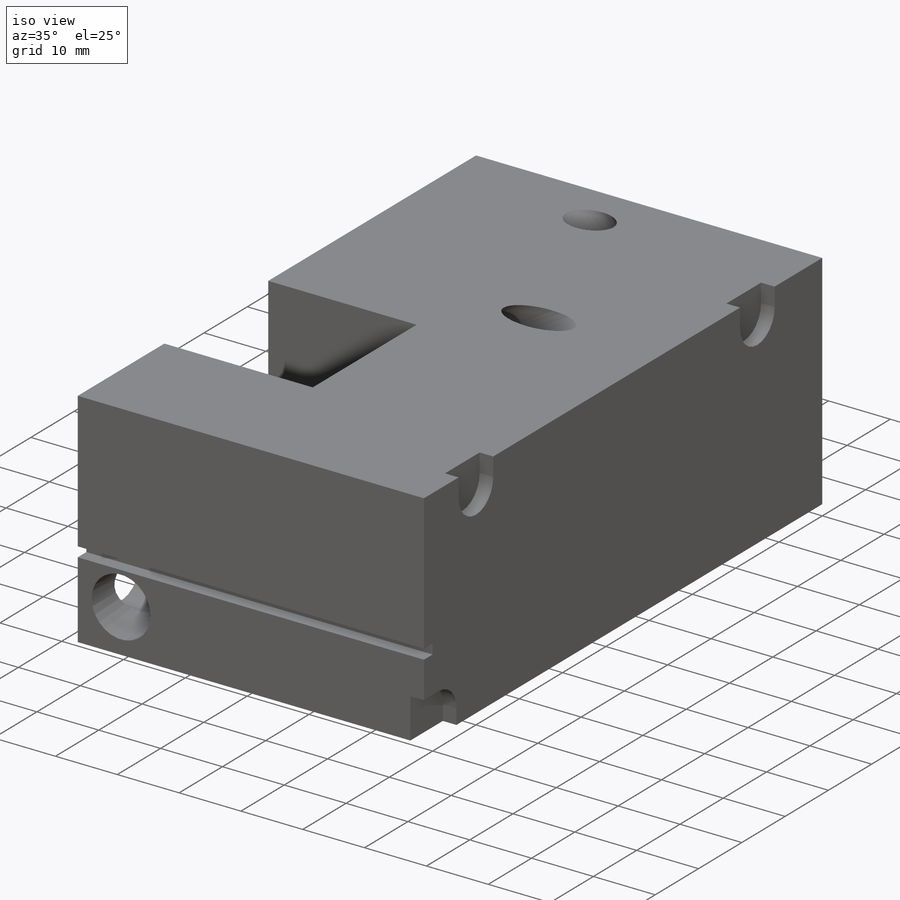
[diagram: iso view]
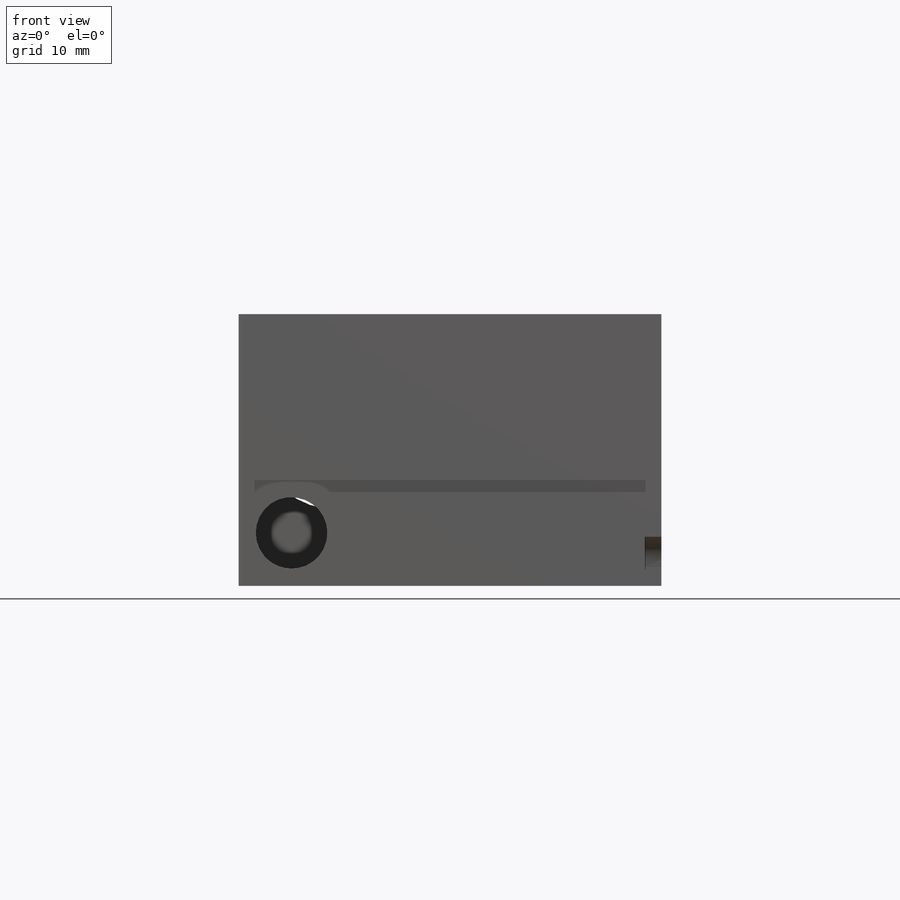
[diagram: front view]
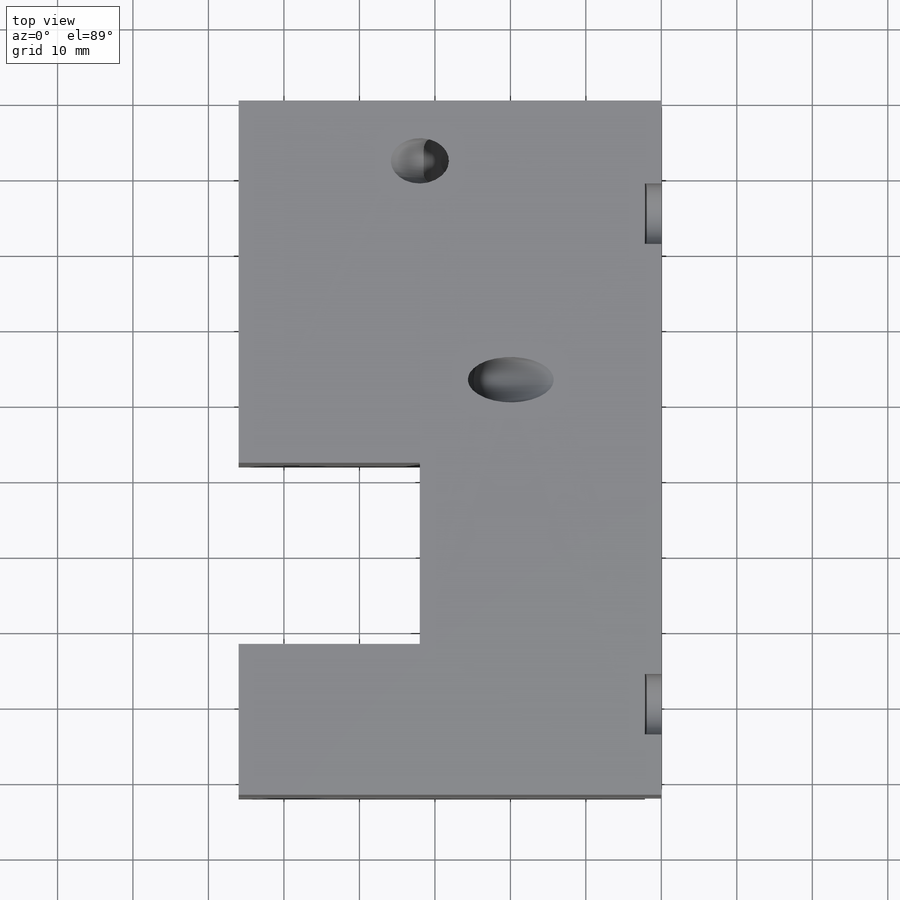
[diagram: top view]
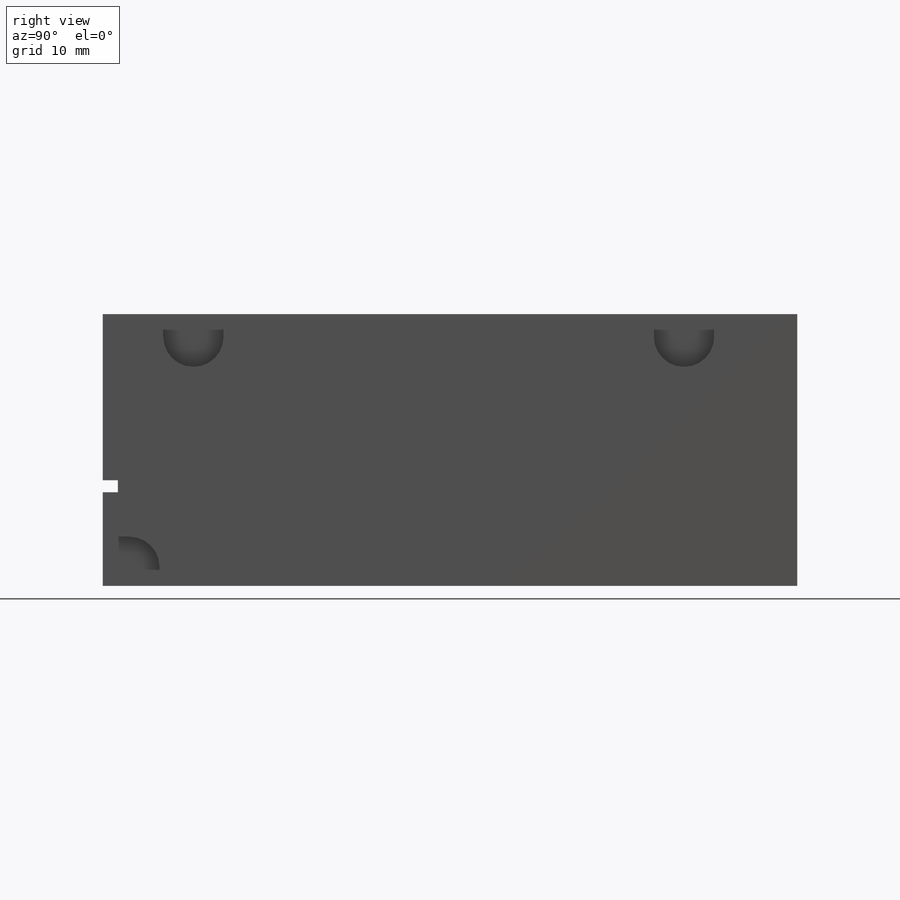
[diagram: right view]
SOLIDWORKS PART (.sldprt)
format: sldprt  version: not decoded by parser v0  size: 489,472 bytes
history: native  units: mm
features: sketch x16, cut_extrude x15, plane x7, material x1, extrude x1, hole x1 (+13 scaffold rows collapsed)
feature tree (54):
  scaffold x13  (default folders/planes/origin — collapsed)
  material  "ПТФЭ (общий)"
  plane  "Спереди"
  plane  "Сверху"
  plane  "Справа"
  sketch  "Эскиз1"  dims[D1=36.0mm D2=56.0mm]
  extrude  "Бобышка-Вытянуть1"  Depth=92mm
  sketch  "Эскиз2"  dims[c1.D1=28.0mm c1.D3=28.0mm c1.D4=22.225mm c1.D2=16.0mm c2.D3=16.0mm]
  cut_extrude  "Вырез-Вытянуть1"  Depth=82mm
  sketch  "Эскиз5"  dims[c1.D1=24.0mm c1.D2=28.0mm c1.D3=18.0mm c2.D2=28.0mm c2.D3=28.0mm c2.D4=7.0mm c2.D5=7.0mm c2.D6=7.0mm c3.D2=29.0mm c3.D3=18.0mm c4.D2=26.5mm c4.D3=6.0mm c4.D5=15.0mm c4.D6=12.0mm]
  cut_extrude  "Вырез-Вытянуть2"  Depth=40mm
  sketch  "Эскиз7"  dims[D1=32.0mm D2=48.0mm D3=24.0mm]
  cut_extrude  "Вырез-Вытянуть4"  [1 undecoded]
  sketch  "Эскиз6"  dims[c1.D1=9.5mm c1.D2=24.0mm c1.D3=24.0mm c2.D2=15.0mm c2.D3=6.5mm]
  cut_extrude  "Вырез-Вытянуть3"  Depth=8mm
  cut_extrude  "Ось2"  [1 undecoded]
  cut_extrude  "Ось3"  [1 undecoded]
  plane  "Плоскость2"
  plane  "Плоскость3"
  plane  "Плоскость4"
  plane  "Плоскость5"
  sketch  "Эскиз15"  dims[D1=6.0mm D2=37.0mm]
  cut_extrude  "Вырез-Вытянуть8"  [1 undecoded]
  sketch  "Эскиз16"  dims[D1=6.0mm D2=8.0mm]
  cut_extrude  "Вырез-Вытянуть9"  [1 undecoded]
  sketch  "Эскиз17"  dims[c1.D1=~3.478728mm c2.D1=20.0deg c2.D2=3.5mm]
  cut_extrude  "скос"  Depth=18mm
  hole  "1/4  NPT"  [1 undecoded]
  sketch  "Эскиз12"  dims[D1=9.0mm D2=9.0mm]
  sketch  "Эскиз11"  dims[hole-wizard template sketch: 39 standard entries collapsed; hole parameters kept: c10.Диаметр проходного сверла=11.1252mm c10.Глубина проходного сверла=~11.124791mm c10.Диаметр резьбы=~13.715975mm c10.D4=~21.335028mm c10.Угол резьбы=3.43deg c10.Глубина резьбы=10.02mm c10.Диаметр передней зенковки=~14.985975mm c10.D7=~2.053058mm c10.Угол передней зенковки=110.0deg]
  sketch  "Эскиз18"  dims[D1=6.0mm D2=11.0mm D3=3.0mm]
  cut_extrude  "Вырез-Вытянуть11"  Depth=4mm
  sketch  "Эскиз19"  dims[D3=3.0mm D1=23.0mm D2=18.0mm]
  cut_extrude  "Вырез-Вытянуть12"  Depth=2.5mm
  sketch  "Эскиз20"  dims[c1.D2=~9.46194mm c1.D3=9.5mm c1.D1=10.0mm c2.D2=7.0mm]
  cut_extrude  "Вырез-Вытянуть13"  Depth=38mm
  sketch  "Эскиз21"  dims[c1.D1=6.0mm c1.D2=6.0mm c1.D3=6.0mm c2.D2=16.0mm c2.D3=9.0mm]
  cut_extrude  "Вырез-Вытянуть14"  [1 undecoded]
  sketch  "Эскиз22"  dims[c1.D1=4.0mm c1.D7=4.0mm c1.D2=7.5mm c1.D3=6.5mm c1.D4=8.0mm c1.D5=7.0mm c1.D6=15.0mm c2.D7=65.0mm]
  cut_extrude  "Вырез-Вытянуть15"  Depth=2.2mm
  sketch  "Эскиз23"  dims[c1.D1=1.6mm c1.D2=22.0mm c1.D3=2.0mm c2.D2=22.0mm c2.D1=1.6mm c3.D2=22.0mm c3.D3=2.0mm]
  cut_extrude  "Вырез-Вытянуть16"  [1 undecoded]
decode coverage: 25 of 33 modeling features carry decoded parameters
note: ~ marks probable driven/reference dimensions
note: 8 parameter values undecoded
summary: no parameter record found for 8 features
note: suppression state not decoded; provenance and decode notes live in map.json
